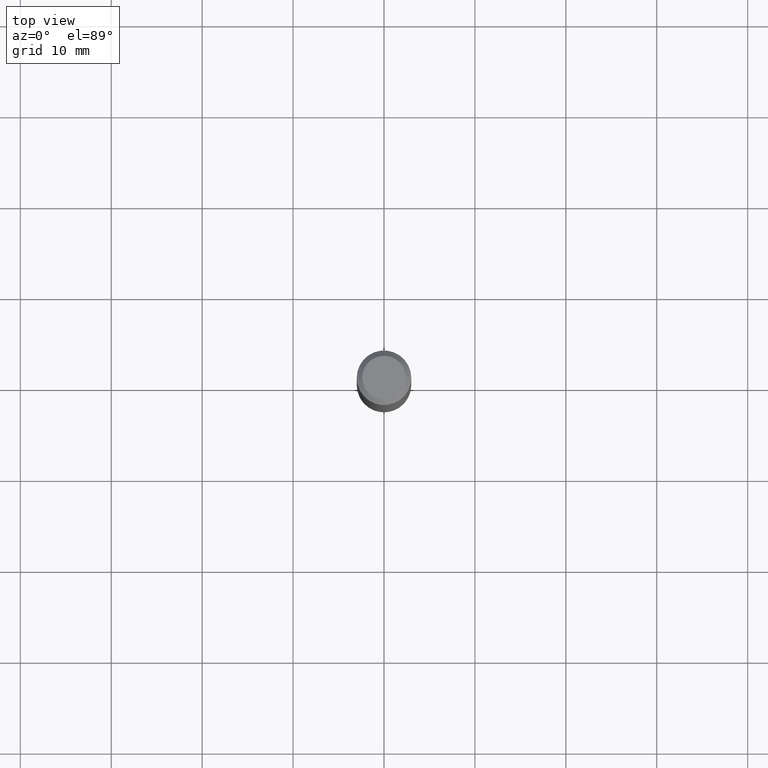
[diagram: clean part render]
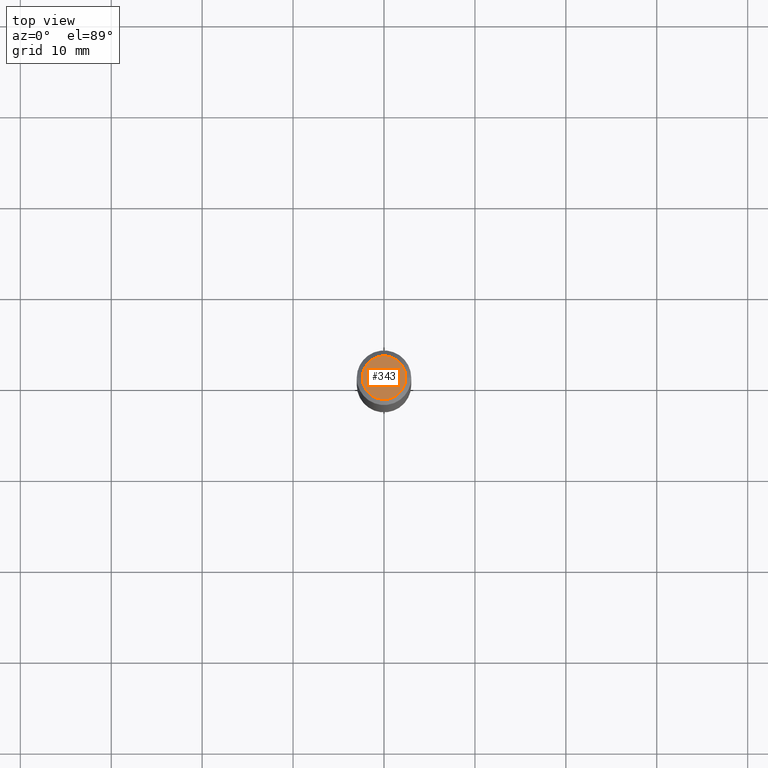
[diagram: same view with one face highlighted and labeled with its STEP entity id]
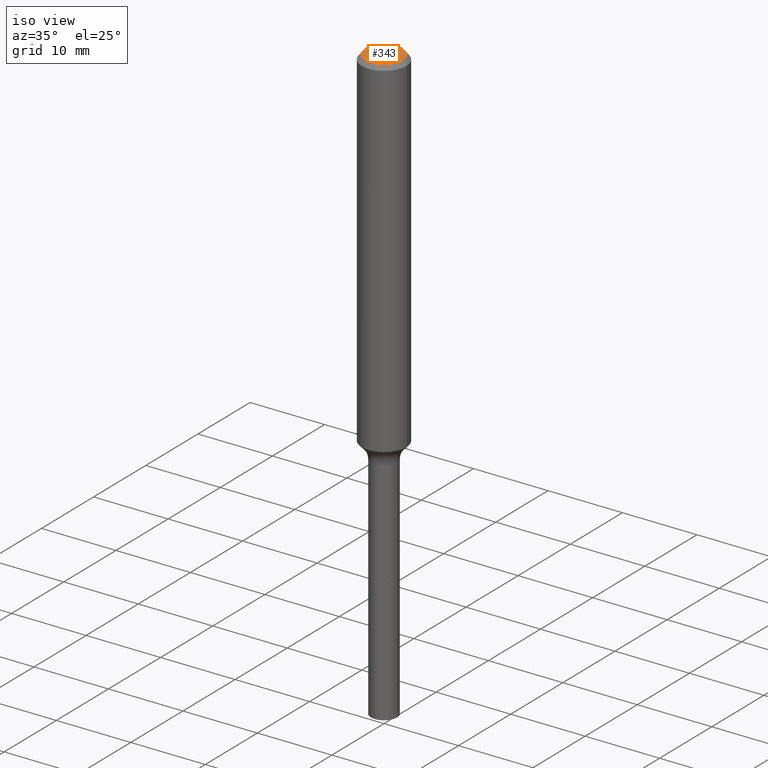
[diagram: same view with one face highlighted and labeled with its STEP entity id]
A machine part, top view. The second image highlights one B-rep face of the part: STEP entity #343.
A second angle (iso view) of the same face is appended — the face is thin or edge-on in the first view.
In plain terms, the highlighted planar face has unit normal (0, -0, -1).
Its self-contained STEP definition (entity closure, byte-faithful):
#1 = AXIS2_PLACEMENT_3D ( 'NONE', #496, #146, #144 ) ;
#8 = PLANE ( 'NONE',  #432 ) ;
#23 = EDGE_CURVE ( 'NONE', #147, #306, #402, .T. ) ;
#92 = CARTESIAN_POINT ( 'NONE',  ( 0.09447999999999998066, -7.704367267948738690E-16, -3.085620075131172158E-17 ) ) ;
#140 = CARTESIAN_POINT ( 'NONE',  ( 7.545787641473140628E-46, -1.077338491108201769E-31, -3.085620075131671975E-17 ) ) ;
#144 = DIRECTION ( 'NONE',  ( 1.000000000000000000, -6.982962677686267499E-15, 4.875432709231658792E-29 ) ) ;
#146 = DIRECTION ( 'NONE',  ( -2.445468806185136597E-29, 3.491481338843145583E-15, 1.000000000000000000 ) ) ;
#147 = VERTEX_POINT ( 'NONE', #285 ) ;
#148 = DIRECTION ( 'NONE',  ( 1.000000000000000000, -6.982962677686267499E-15, 4.875432709231658792E-29 ) ) ;
#173 = FACE_OUTER_BOUND ( 'NONE', #288, .T. ) ;
#230 = CIRCLE ( 'NONE', #1, 0.09447999999999998066 ) ;
#249 = EDGE_CURVE ( 'NONE', #306, #147, #230, .T. ) ;
#255 = CARTESIAN_POINT ( 'NONE',  ( 3.772893820736570314E-46, -5.386692455541008845E-32, -1.542810037565835988E-17 ) ) ;
#285 = CARTESIAN_POINT ( 'NONE',  ( -0.09447999999999998066, 7.009847083995354710E-16, -3.085620075132147757E-17 ) ) ;
#288 = EDGE_LOOP ( 'NONE', ( #369, #289 ) ) ;
#289 = ORIENTED_EDGE ( 'NONE', *, *, #249, .T. ) ;
#306 = VERTEX_POINT ( 'NONE', #92 ) ;
#343 = ADVANCED_FACE ( 'NONE', ( #173 ), #8, .F. ) ;
#369 = ORIENTED_EDGE ( 'NONE', *, *, #23, .T. ) ;
#402 = CIRCLE ( 'NONE', #445, 0.09447999999999998066 ) ;
#412 = DIRECTION ( 'NONE',  ( -2.445468806185136597E-29, 3.491481338843145583E-15, 1.000000000000000000 ) ) ;
#432 = AXIS2_PLACEMENT_3D ( 'NONE', #255, #456, #486 ) ;
#445 = AXIS2_PLACEMENT_3D ( 'NONE', #140, #412, #148 ) ;
#456 = DIRECTION ( 'NONE',  ( 2.438088387897960049E-29, -3.491481338843145188E-15, -1.000000000000000000 ) ) ;
#486 = DIRECTION ( 'NONE',  ( -1.000000000000000000, 6.982962677686265922E-15, -4.876176775795935793E-29 ) ) ;
#496 = CARTESIAN_POINT ( 'NONE',  ( 7.545787641473140628E-46, -1.077338491108201769E-31, -3.085620075131671975E-17 ) ) ;